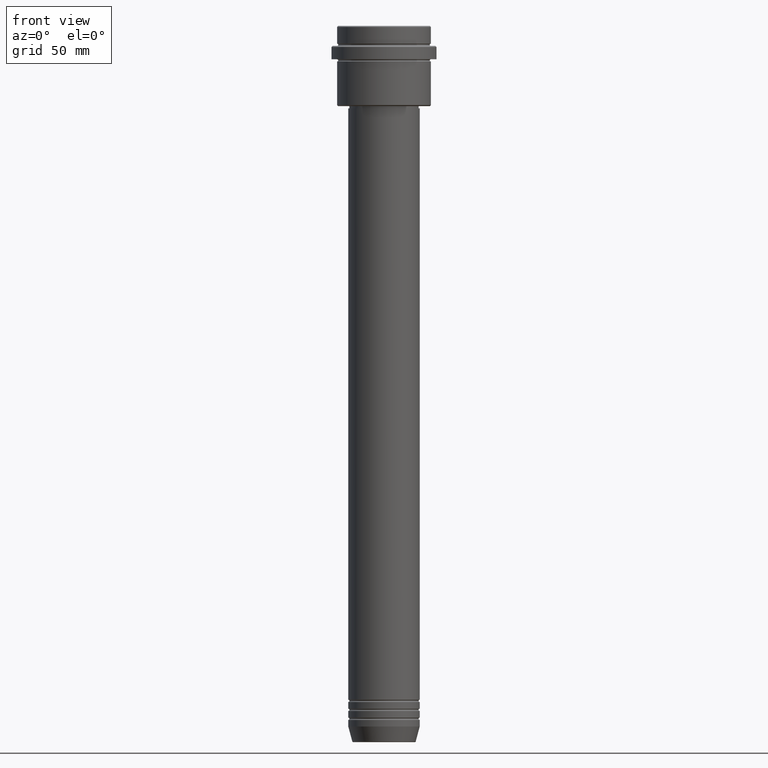
[diagram: clean part render]
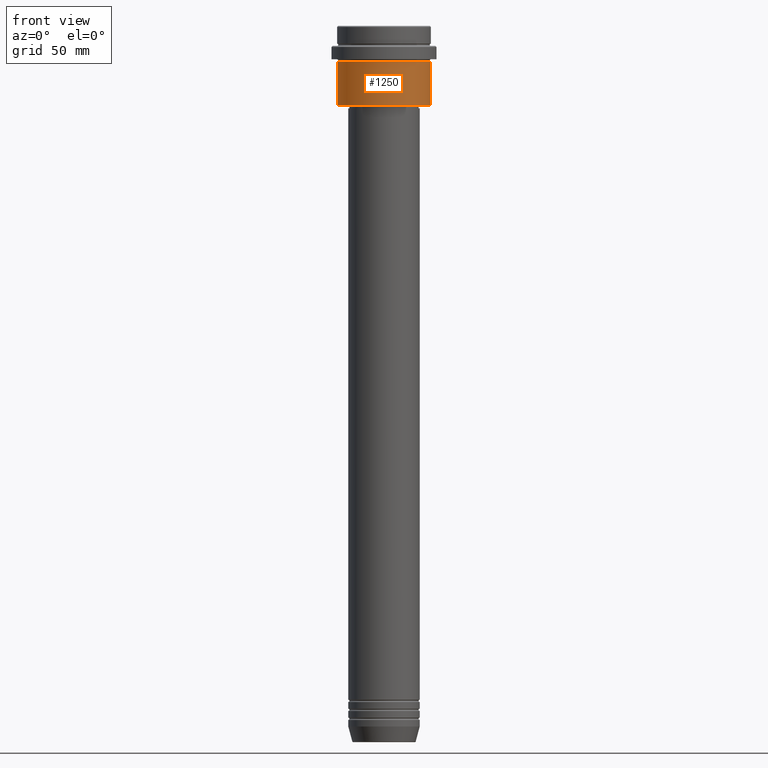
[diagram: same view with one face highlighted and labeled with its STEP entity id]
A machine part, front view. The second image highlights one B-rep face of the part: STEP entity #1250.
In plain terms, the highlighted cylindrical surface (partial cylindrical patch) has radius 21 mm, axis along (-0, -0, 1).
Its self-contained STEP definition (entity closure, byte-faithful):
#7 = LINE ( 'NONE', #1009, #652 ) ;
#15 = EDGE_LOOP ( 'NONE', ( #756, #1254, #1396, #1054 ) ) ;
#25 = CARTESIAN_POINT ( 'NONE',  ( 21.00000000000000000, 0.000000000000000000, -16.00000000000000355 ) ) ;
#41 = CIRCLE ( 'NONE', #1082, 21.00000000000000000 ) ;
#58 = CARTESIAN_POINT ( 'NONE',  ( -21.00000000000000000, 2.571758278209441661E-15, -16.00000000000000355 ) ) ;
#83 = DIRECTION ( 'NONE',  ( -1.000000000000000000, 0.000000000000000000, 0.000000000000000000 ) ) ;
#136 = VECTOR ( 'NONE', #270, 1000.000000000000000 ) ;
#173 = CARTESIAN_POINT ( 'NONE',  ( -21.00000000000000000, 2.571758278209441661E-15, -35.49999999999997868 ) ) ;
#179 = VERTEX_POINT ( 'NONE', #772 ) ;
#184 = CARTESIAN_POINT ( 'NONE',  ( 0.000000000000000000, 0.000000000000000000, -16.00000000000000355 ) ) ;
#201 = CARTESIAN_POINT ( 'NONE',  ( 0.000000000000000000, 0.000000000000000000, -35.49999999999997868 ) ) ;
#270 = DIRECTION ( 'NONE',  ( -0.000000000000000000, -0.000000000000000000, 1.000000000000000000 ) ) ;
#273 = VERTEX_POINT ( 'NONE', #58 ) ;
#319 = DIRECTION ( 'NONE',  ( -0.000000000000000000, -0.000000000000000000, 1.000000000000000000 ) ) ;
#362 = FACE_OUTER_BOUND ( 'NONE', #15, .T. ) ;
#398 = DIRECTION ( 'NONE',  ( 1.000000000000000000, 0.000000000000000000, 0.000000000000000000 ) ) ;
#558 = AXIS2_PLACEMENT_3D ( 'NONE', #201, #1169, #83 ) ;
#617 = EDGE_CURVE ( 'NONE', #773, #273, #7, .T. ) ;
#652 = VECTOR ( 'NONE', #319, 1000.000000000000000 ) ;
#692 = DIRECTION ( 'NONE',  ( -0.000000000000000000, -0.000000000000000000, 1.000000000000000000 ) ) ;
#709 = CARTESIAN_POINT ( 'NONE',  ( 21.00000000000000000, 0.000000000000000000, 0.000000000000000000 ) ) ;
#756 = ORIENTED_EDGE ( 'NONE', *, *, #617, .F. ) ;
#772 = CARTESIAN_POINT ( 'NONE',  ( 21.00000000000000000, 0.000000000000000000, -35.49999999999997868 ) ) ;
#773 = VERTEX_POINT ( 'NONE', #173 ) ;
#787 = CYLINDRICAL_SURFACE ( 'NONE', #971, 21.00000000000000000 ) ;
#872 = EDGE_CURVE ( 'NONE', #179, #1326, #1248, .T. ) ;
#945 = EDGE_CURVE ( 'NONE', #273, #1326, #41, .T. ) ;
#971 = AXIS2_PLACEMENT_3D ( 'NONE', #1125, #692, #1252 ) ;
#1009 = CARTESIAN_POINT ( 'NONE',  ( -21.00000000000000000, 2.571758278209441661E-15, 0.000000000000000000 ) ) ;
#1017 = EDGE_CURVE ( 'NONE', #773, #179, #1175, .T. ) ;
#1054 = ORIENTED_EDGE ( 'NONE', *, *, #945, .F. ) ;
#1082 = AXIS2_PLACEMENT_3D ( 'NONE', #184, #1398, #398 ) ;
#1125 = CARTESIAN_POINT ( 'NONE',  ( 0.000000000000000000, 0.000000000000000000, 0.000000000000000000 ) ) ;
#1169 = DIRECTION ( 'NONE',  ( -0.000000000000000000, -0.000000000000000000, 1.000000000000000000 ) ) ;
#1175 = CIRCLE ( 'NONE', #558, 21.00000000000000000 ) ;
#1248 = LINE ( 'NONE', #709, #136 ) ;
#1250 = ADVANCED_FACE ( 'NONE', ( #362 ), #787, .T. ) ;
#1252 = DIRECTION ( 'NONE',  ( 1.000000000000000000, 0.000000000000000000, 0.000000000000000000 ) ) ;
#1254 = ORIENTED_EDGE ( 'NONE', *, *, #1017, .T. ) ;
#1326 = VERTEX_POINT ( 'NONE', #25 ) ;
#1396 = ORIENTED_EDGE ( 'NONE', *, *, #872, .T. ) ;
#1398 = DIRECTION ( 'NONE',  ( -0.000000000000000000, -0.000000000000000000, 1.000000000000000000 ) ) ;